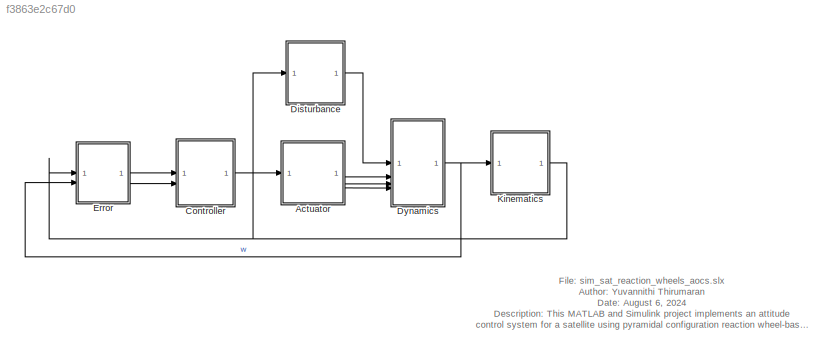
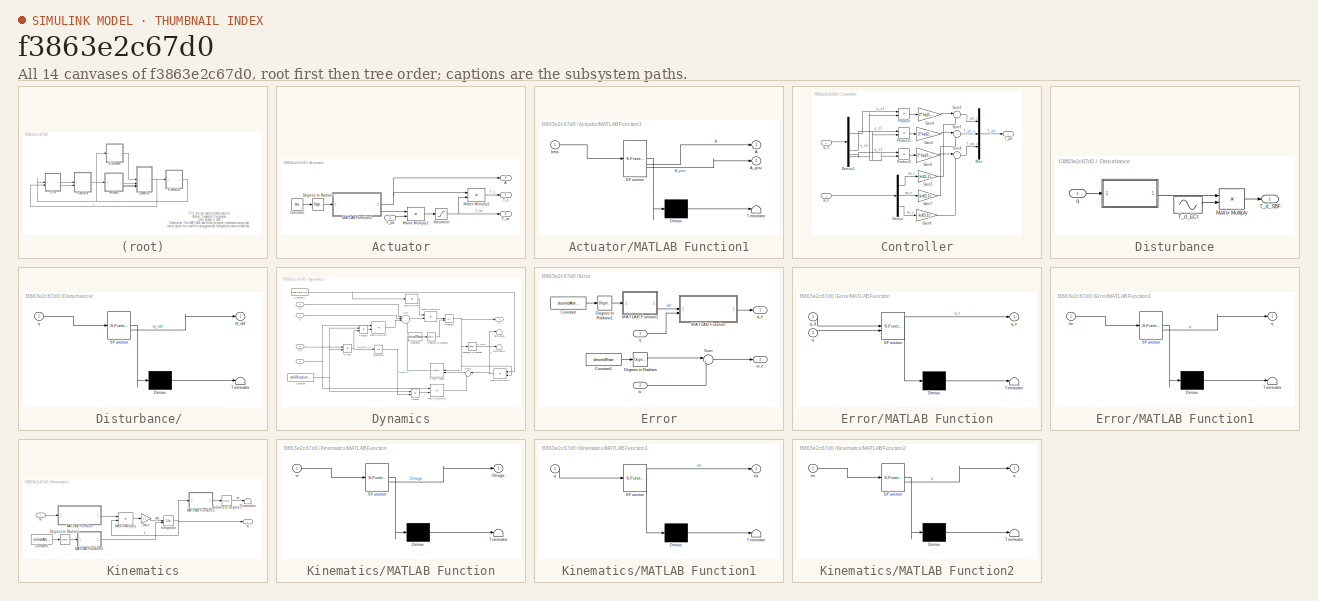
[diagram: thumbnail index - all 14 canvases of the model, root first then tree order]
MODEL slx_f3863e2c67d0
KIND model
CONFIG AbsTol = auto
CONFIG EnableMultiTasking = off
CONFIG FixedStep = auto
CONFIG MaxStep = auto
CONFIG MinStep = auto
CONFIG RelTol = 1e-3
CONFIG SampleTimeConstraint = Unconstrained
CONFIG SolverName = VariableStepAuto
CONFIG StartTime = 0.0
CONFIG StopTime = 120
BLOCK [SubSystem] Actuator
BLOCK [Outport] Actuator/A
  Port = 3
BLOCK [Constant] Actuator/Constant
  Value = beta
BLOCK [Reference] Actuator/Degrees to Radians  REF=simulink_extras/Transformations/Degrees to
Radians
  SourceBlock = simulink_extras/Transformations/Degrees to\nRadians
  SourceType = DegreesToRadians
BLOCK [SubSystem] Actuator/MATLAB Function1
  ErrorFcn = Stateflow.Translate.translate
  PermitHierarchicalResolution = ExplicitOnly
  SFBlockType = MATLAB Function
  TreatAsAtomicUnit = on
BLOCK [Demux] Actuator/MATLAB Function1/ Demux 
  Outputs = 1
BLOCK [S-Function] Actuator/MATLAB Function1/ SFunction 
  EnableBusSupport = on
  FunctionName = sf_sfun
  PortCounts = [1 3]
  SFcnIsStateOwnerBlock = off
  SFunctionDeploymentMode = off
  Tag = Stateflow S-Function 3
BLOCK [Terminator] Actuator/MATLAB Function1/ Terminator 
BLOCK [Outport] Actuator/MATLAB Function1/A
BLOCK [Outport] Actuator/MATLAB Function1/A_pinv
  Port = 2
BLOCK [Inport] Actuator/MATLAB Function1/beta
BLOCK [Product] Actuator/Matrix Multiply1
  Multiplication = Matrix(*)
BLOCK [Product] Actuator/Matrix Multiply2
  Multiplication = Matrix(*)
BLOCK [Saturate] Actuator/Saturation
  LowerLimit = -maxTorqueReactionWheel
  UpperLimit = maxTorqueReactionWheel
BLOCK [Outport] Actuator/T_c
BLOCK [Inport] Actuator/T_pd
BLOCK [Outport] Actuator/T_rw
  Port = 2
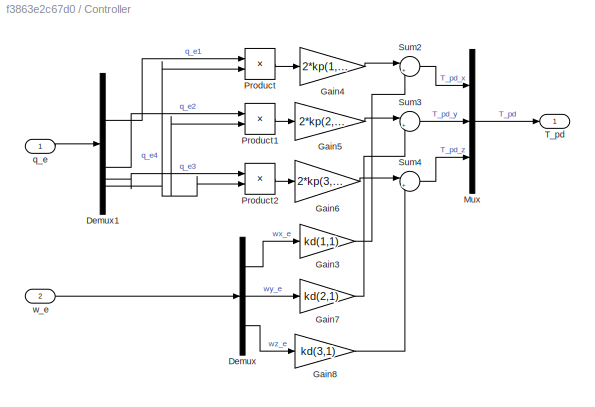
BLOCK [SubSystem] Controller
BLOCK [Demux] Controller/Demux
  Outputs = 3
BLOCK [Demux] Controller/Demux1
BLOCK [Gain] Controller/Gain3
  Gain = kd(1,1)
BLOCK [Gain] Controller/Gain4
  Gain = 2*kp(1,1)
BLOCK [Gain] Controller/Gain5
  Gain = 2*kp(2,1)
BLOCK [Gain] Controller/Gain6
  Gain = 2*kp(3,1)
BLOCK [Gain] Controller/Gain7
  Gain = kd(2,1)
BLOCK [Gain] Controller/Gain8
  Gain = kd(3,1)
BLOCK [Mux] Controller/Mux
  DisplayOption = bar
  Inputs = 3
BLOCK [Product] Controller/Product
BLOCK [Product] Controller/Product1
BLOCK [Product] Controller/Product2
BLOCK [Sum] Controller/Sum2
  Inputs = |++
BLOCK [Sum] Controller/Sum3
  Inputs = |++
BLOCK [Sum] Controller/Sum4
  Inputs = |++
BLOCK [Outport] Controller/T_pd
BLOCK [Inport] Controller/q_e
BLOCK [Inport] Controller/w_e
  Port = 2
BLOCK [SubSystem] Disturbance
BLOCK [SubSystem] Disturbance/ 
  ErrorFcn = Stateflow.Translate.translate
  PermitHierarchicalResolution = ExplicitOnly
  SFBlockType = MATLAB Function
  TreatAsAtomicUnit = on
BLOCK [Demux] Disturbance/ / Demux 
  Outputs = 1
BLOCK [S-Function] Disturbance/ / SFunction 
  EnableBusSupport = on
  FunctionName = sf_sfun
  PortCounts = [1 2]
  SFcnIsStateOwnerBlock = off
  SFunctionDeploymentMode = off
  Tag = Stateflow S-Function 5
BLOCK [Terminator] Disturbance/ / Terminator 
BLOCK [Inport] Disturbance/ /q
BLOCK [Outport] Disturbance/ /td_sbf
BLOCK [Product] Disturbance/Matrix Multiply
  Multiplication = Matrix(*)
BLOCK [Sin] Disturbance/T_d_ECI
  Amplitude = disturbanceTorque
  SampleTime = 0
BLOCK [Outport] Disturbance/T_d_SBF
BLOCK [Inport] Disturbance/q
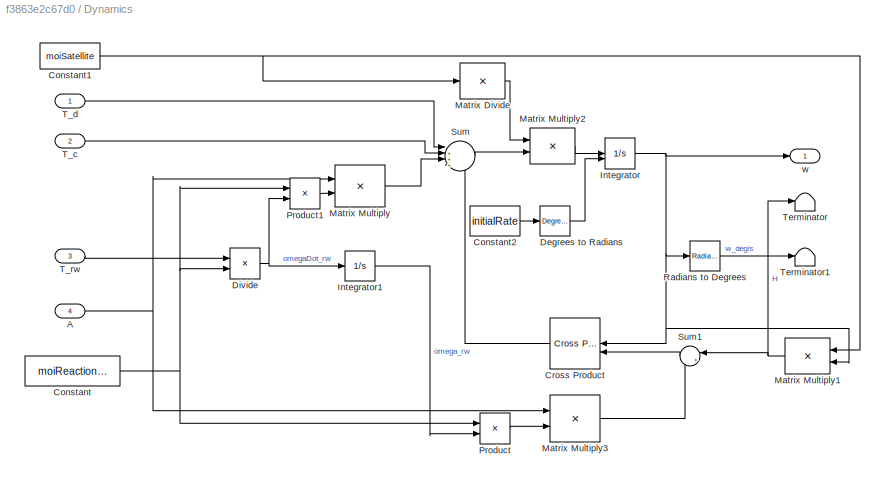
BLOCK [SubSystem] Dynamics
BLOCK [Inport] Dynamics/A
  Port = 4
BLOCK [Constant] Dynamics/Constant
  Value = moiReactionWheel
BLOCK [Constant] Dynamics/Constant1
  Value = moiSatellite
BLOCK [Constant] Dynamics/Constant2
  Value = initialRate
BLOCK [Reference] Dynamics/Cross Product  REF=matrix_library/Cross Product
  LibrarySourceBlock = simulink/Matrix\nOperations/Cross Product
  NameLocation = top
  SourceBlock = matrix_library/Cross Product
  SourceType = CrossProduct
BLOCK [Reference] Dynamics/Degrees to Radians  REF=simulink_extras/Transformations/Degrees to
Radians
  SourceBlock = simulink_extras/Transformations/Degrees to\nRadians
  SourceType = DegreesToRadians
BLOCK [Product] Dynamics/Divide
  Inputs = */
BLOCK [Integrator] Dynamics/Integrator
  InitialCondition = initialRate
  InitialConditionSource = external
BLOCK [Integrator] Dynamics/Integrator1
  InitialCondition = zeros(4,1)
BLOCK [Product] Dynamics/Matrix Divide
  Inputs = /
  Multiplication = Matrix(*)
BLOCK [Product] Dynamics/Matrix Multiply
  Multiplication = Matrix(*)
BLOCK [Product] Dynamics/Matrix Multiply1
  Multiplication = Matrix(*)
  NameLocation = top
BLOCK [Product] Dynamics/Matrix Multiply2
  Multiplication = Matrix(*)
BLOCK [Product] Dynamics/Matrix Multiply3
  Multiplication = Matrix(*)
BLOCK [Product] Dynamics/Product
BLOCK [Product] Dynamics/Product1
BLOCK [Reference] Dynamics/Radians to Degrees  REF=simulink_extras/Transformations/Radians
to Degrees
  SourceBlock = simulink_extras/Transformations/Radians\nto Degrees
  SourceType = RadiansToDegrees
BLOCK [Sum] Dynamics/Sum
  Inputs = |+++-
BLOCK [Sum] Dynamics/Sum1
  Inputs = |++
  NameLocation = top
BLOCK [Inport] Dynamics/T_c
  Port = 2
BLOCK [Inport] Dynamics/T_d
BLOCK [Inport] Dynamics/T_rw
  Port = 3
BLOCK [Terminator] Dynamics/Terminator
BLOCK [Terminator] Dynamics/Terminator1
BLOCK [Outport] Dynamics/w
BLOCK [SubSystem] Error
BLOCK [Constant] Error/Constant
  Value = desiredAttitude
BLOCK [Constant] Error/Constant1
  Value = desiredRate
BLOCK [Reference] Error/Degrees to Radians  REF=simulink_extras/Transformations/Degrees to
Radians
  SourceBlock = simulink_extras/Transformations/Degrees to\nRadians
  SourceType = DegreesToRadians
BLOCK [Reference] Error/Degrees to Radians1  REF=simulink_extras/Transformations/Degrees to
Radians
  SourceBlock = simulink_extras/Transformations/Degrees to\nRadians
  SourceType = DegreesToRadians
BLOCK [SubSystem] Error/MATLAB Function
  ErrorFcn = Stateflow.Translate.translate
  PermitHierarchicalResolution = ExplicitOnly
  SFBlockType = MATLAB Function
  TreatAsAtomicUnit = on
BLOCK [Demux] Error/MATLAB Function/ Demux 
  Outputs = 1
BLOCK [S-Function] Error/MATLAB Function/ SFunction 
  EnableBusSupport = on
  FunctionName = sf_sfun
  PortCounts = [2 2]
  SFcnIsStateOwnerBlock = off
  SFunctionDeploymentMode = off
  Tag = Stateflow S-Function 6
BLOCK [Terminator] Error/MATLAB Function/ Terminator 
BLOCK [Inport] Error/MATLAB Function/q
  Port = 2
BLOCK [Inport] Error/MATLAB Function/q_d
BLOCK [Outport] Error/MATLAB Function/q_e
BLOCK [SubSystem] Error/MATLAB Function1
  ErrorFcn = Stateflow.Translate.translate
  PermitHierarchicalResolution = ExplicitOnly
  SFBlockType = MATLAB Function
  TreatAsAtomicUnit = on
BLOCK [Demux] Error/MATLAB Function1/ Demux 
  Outputs = 1
BLOCK [S-Function] Error/MATLAB Function1/ SFunction 
  EnableBusSupport = on
  FunctionName = sf_sfun
  PortCounts = [1 2]
  SFcnIsStateOwnerBlock = off
  SFunctionDeploymentMode = off
  Tag = Stateflow S-Function 4
BLOCK [Terminator] Error/MATLAB Function1/ Terminator 
BLOCK [Inport] Error/MATLAB Function1/ea
BLOCK [Outport] Error/MATLAB Function1/q
BLOCK [Sum] Error/Sum
  Inputs = |+-
BLOCK [Inport] Error/q
BLOCK [Outport] Error/q_e
BLOCK [Inport] Error/w
  Port = 2
BLOCK [Outport] Error/w_e
  Port = 2
BLOCK [SubSystem] Kinematics
BLOCK [Constant] Kinematics/Constant
  Value = initialAttitude
BLOCK [Reference] Kinematics/Degrees to Radians  REF=simulink_extras/Transformations/Degrees to
Radians
  SourceBlock = simulink_extras/Transformations/Degrees to\nRadians
  SourceType = DegreesToRadians
BLOCK [Gain] Kinematics/Gain
  Gain = 0.5
BLOCK [Integrator] Kinematics/Integrator
  InitialCondition = [1; 0; 0; 0]
  InitialConditionSource = external
BLOCK [SubSystem] Kinematics/MATLAB Function
  ErrorFcn = Stateflow.Translate.translate
  PermitHierarchicalResolution = ExplicitOnly
  SFBlockType = MATLAB Function
  TreatAsAtomicUnit = on
BLOCK [Demux] Kinematics/MATLAB Function/ Demux 
  Outputs = 1
BLOCK [S-Function] Kinematics/MATLAB Function/ SFunction 
  EnableBusSupport = on
  FunctionName = sf_sfun
  PortCounts = [1 2]
  SFcnIsStateOwnerBlock = off
  SFunctionDeploymentMode = off
  Tag = Stateflow S-Function 2
BLOCK [Terminator] Kinematics/MATLAB Function/ Terminator 
BLOCK [Outport] Kinematics/MATLAB Function/Omega
BLOCK [Inport] Kinematics/MATLAB Function/w
BLOCK [SubSystem] Kinematics/MATLAB Function1
  ErrorFcn = Stateflow.Translate.translate
  PermitHierarchicalResolution = ExplicitOnly
  SFBlockType = MATLAB Function
  TreatAsAtomicUnit = on
BLOCK [Demux] Kinematics/MATLAB Function1/ Demux 
  Outputs = 1
BLOCK [S-Function] Kinematics/MATLAB Function1/ SFunction 
  EnableBusSupport = on
  FunctionName = sf_sfun
  PortCounts = [1 2]
  SFcnIsStateOwnerBlock = off
  SFunctionDeploymentMode = off
  Tag = Stateflow S-Function 7
BLOCK [Terminator] Kinematics/MATLAB Function1/ Terminator 
BLOCK [Outport] Kinematics/MATLAB Function1/ea
BLOCK [Inport] Kinematics/MATLAB Function1/q
BLOCK [SubSystem] Kinematics/MATLAB Function2
  ErrorFcn = Stateflow.Translate.translate
  PermitHierarchicalResolution = ExplicitOnly
  SFBlockType = MATLAB Function
  TreatAsAtomicUnit = on
BLOCK [Demux] Kinematics/MATLAB Function2/ Demux 
  Outputs = 1
BLOCK [S-Function] Kinematics/MATLAB Function2/ SFunction 
  EnableBusSupport = on
  FunctionName = sf_sfun
  PortCounts = [1 2]
  SFcnIsStateOwnerBlock = off
  SFunctionDeploymentMode = off
  Tag = Stateflow S-Function 1
BLOCK [Terminator] Kinematics/MATLAB Function2/ Terminator 
BLOCK [Inport] Kinematics/MATLAB Function2/ea
BLOCK [Outport] Kinematics/MATLAB Function2/q
BLOCK [Product] Kinematics/Matrix Multiply
  Multiplication = Matrix(*)
BLOCK [Reference] Kinematics/Radians to Degrees  REF=simulink_extras/Transformations/Radians
to Degrees
  SourceBlock = simulink_extras/Transformations/Radians\nto Degrees
  SourceType = RadiansToDegrees
BLOCK [Terminator] Kinematics/Terminator
BLOCK [Outport] Kinematics/q
BLOCK [Inport] Kinematics/w
ANNOTATION (root): File: sim_sat_reaction_wheels_aocs.slx Author: Yuvannithi Thirumaran Date: August 6, 2024 Description: This MATLAB and Simulink project implements an attitude control system for a satellite using pyramidal configuration reaction wheel-based control. Simulation results include satellite attitude (Euler angles and quaternions), angular rate, momentum, and torque (Satellite and reaction wheels).
LINE Actuator/Constant:1 -> Actuator/Degrees to Radians:1
LINE Actuator/Degrees to Radians:1 -> Actuator/MATLAB Function1:1
NET Actuator/MATLAB Function1:1 -> Actuator/A:1, Actuator/Matrix Multiply2:1
LINE Actuator/MATLAB Function1:2 -> Actuator/Matrix Multiply1:1
LINE Actuator/Matrix Multiply1:1 -> Actuator/Saturation:1
LINE Actuator/Matrix Multiply2:1 -> Actuator/T_c:1
NET Actuator/Saturation:1 -> Actuator/Matrix Multiply2:2, Actuator/T_rw:1
LINE Actuator/T_pd:1 -> Actuator/Matrix Multiply1:2
LINE Actuator:1 -> Dynamics:2
LINE Actuator:2 -> Dynamics:3
LINE Actuator:3 -> Dynamics:4
LINE Controller/Demux1:1 -> Controller/Product:1
LINE Controller/Demux1:2 -> Controller/Product1:1
LINE Controller/Demux1:3 -> Controller/Product2:1
NET Controller/Demux1:4 -> Controller/Product1:2, Controller/Product2:2, Controller/Product:2
LINE Controller/Demux:1 -> Controller/Gain3:1
LINE Controller/Demux:2 -> Controller/Gain7:1
LINE Controller/Demux:3 -> Controller/Gain8:1
LINE Controller/Gain3:1 -> Controller/Sum2:2
LINE Controller/Gain4:1 -> Controller/Sum2:1
LINE Controller/Gain5:1 -> Controller/Sum3:1
LINE Controller/Gain6:1 -> Controller/Sum4:1
LINE Controller/Gain7:1 -> Controller/Sum3:2
LINE Controller/Gain8:1 -> Controller/Sum4:2
LINE Controller/Mux:1 -> Controller/T_pd:1
LINE Controller/Product1:1 -> Controller/Gain5:1
LINE Controller/Product2:1 -> Controller/Gain6:1
LINE Controller/Product:1 -> Controller/Gain4:1
LINE Controller/Sum2:1 -> Controller/Mux:1
LINE Controller/Sum3:1 -> Controller/Mux:2
LINE Controller/Sum4:1 -> Controller/Mux:3
LINE Controller/q_e:1 -> Controller/Demux1:1
LINE Controller/w_e:1 -> Controller/Demux:1
LINE Controller:1 -> Actuator:1
LINE Disturbance/ :1 -> Disturbance/Matrix Multiply:1
LINE Disturbance/Matrix Multiply:1 -> Disturbance/T_d_SBF:1
LINE Disturbance/T_d_ECI:1 -> Disturbance/Matrix Multiply:2
LINE Disturbance/q:1 -> Disturbance/ :1
LINE Disturbance:1 -> Dynamics:1
NET Dynamics/A:1 -> Dynamics/Matrix Multiply3:1, Dynamics/Matrix Multiply:1
NET Dynamics/Constant1:1 -> Dynamics/Matrix Divide:1, Dynamics/Matrix Multiply1:1
LINE Dynamics/Constant2:1 -> Dynamics/Degrees to Radians:1
NET Dynamics/Constant:1 -> Dynamics/Divide:2, Dynamics/Product1:1, Dynamics/Product:1
LINE Dynamics/Cross Product:1 -> Dynamics/Sum:4
LINE Dynamics/Degrees to Radians:1 -> Dynamics/Integrator:2
NET Dynamics/Divide:1 -> Dynamics/Integrator1:1, Dynamics/Product1:2
LINE Dynamics/Integrator1:1 -> Dynamics/Product:2
NET Dynamics/Integrator:1 -> Dynamics/Cross Product:1, Dynamics/Matrix Multiply1:2, Dynamics/Radians to Degrees:1, Dynamics/w:1
LINE Dynamics/Matrix Divide:1 -> Dynamics/Matrix Multiply2:1
NET Dynamics/Matrix Multiply1:1 -> Dynamics/Sum1:1, Dynamics/Terminator:1
LINE Dynamics/Matrix Multiply2:1 -> Dynamics/Integrator:1
LINE Dynamics/Matrix Multiply3:1 -> Dynamics/Sum1:2
LINE Dynamics/Matrix Multiply:1 -> Dynamics/Sum:3
LINE Dynamics/Product1:1 -> Dynamics/Matrix Multiply:2
LINE Dynamics/Product:1 -> Dynamics/Matrix Multiply3:2
LINE Dynamics/Radians to Degrees:1 -> Dynamics/Terminator1:1
LINE Dynamics/Sum1:1 -> Dynamics/Cross Product:2
LINE Dynamics/Sum:1 -> Dynamics/Matrix Multiply2:2
LINE Dynamics/T_c:1 -> Dynamics/Sum:2
LINE Dynamics/T_d:1 -> Dynamics/Sum:1
LINE Dynamics/T_rw:1 -> Dynamics/Divide:1
NET Dynamics:1 -> Error:2, Kinematics:1
LINE Error/Constant1:1 -> Error/Degrees to Radians:1
LINE Error/Constant:1 -> Error/Degrees to Radians1:1
LINE Error/Degrees to Radians1:1 -> Error/MATLAB Function1:1
LINE Error/Degrees to Radians:1 -> Error/Sum:1
LINE Error/MATLAB Function1:1 -> Error/MATLAB Function:1
LINE Error/MATLAB Function:1 -> Error/q_e:1
LINE Error/Sum:1 -> Error/w_e:1
LINE Error/q:1 -> Error/MATLAB Function:2
LINE Error/w:1 -> Error/Sum:2
LINE Error:1 -> Controller:1
LINE Error:2 -> Controller:2
LINE Kinematics/Constant:1 -> Kinematics/Degrees to Radians:1
LINE Kinematics/Degrees to Radians:1 -> Kinematics/MATLAB Function2:1
LINE Kinematics/Gain:1 -> Kinematics/Integrator:1
NET Kinematics/Integrator:1 -> Kinematics/MATLAB Function1:1, Kinematics/Matrix Multiply:2, Kinematics/q:1
LINE Kinematics/MATLAB Function1:1 -> Kinematics/Radians to Degrees:1
LINE Kinematics/MATLAB Function2:1 -> Kinematics/Integrator:2
LINE Kinematics/MATLAB Function:1 -> Kinematics/Matrix Multiply:1
LINE Kinematics/Matrix Multiply:1 -> Kinematics/Gain:1
LINE Kinematics/Radians to Degrees:1 -> Kinematics/Terminator:1
LINE Kinematics/w:1 -> Kinematics/MATLAB Function:1
NET Kinematics:1 -> Disturbance:1, Error:1
note: NET lines group one-source signal fan-out (src -> all destinations, sorted); 1:1 wires keep LINE
CHART Kinematics/MATLAB Function states=1 transitions=1
  STATE_LABEL 'eML_blk_kernel()'
  STATE_LABEL 'SCRIPT:\nfunction Omega = fcn(w)\n\nwx = w(1,1);\nwy = w(2,1);\nwz = w(3,1);\n\nOmega = [0,  wz, -wy,  wx;\n       -wz,   0,  wx, wy;\n        wy, -wx,   0,  wz;\n       -wx, -wy, -wz,  0];'
CHART Actuator/MATLAB Function1 states=1 transitions=1
  STATE_LABEL 'eML_blk_kernel()'
  STATE_LABEL 'SCRIPT:\nfunction [A, A_pinv] = configMatrix(beta)\n\nA = [cos(beta) 0 -cos(beta) 0;\n     0 cos(beta) 0 -cos(beta);\n     sin(beta) sin(beta) sin(beta) sin(beta)];\n\nA_pinv = pinv(A);'
CHART Error/MATLAB Function1 states=1 transitions=1
  STATE_LABEL 'eML_blk_kernel()'
  STATE_LABEL 'SCRIPT:\nfunction q = fcn(ea)\n\nphi = ea(1,1);\ntheta = ea(2,1);\npsi = ea(3,1);\n\nq1 =  sin(psi/2)*sin(theta/2)*sin(phi/2) + cos(psi/2)*cos(theta/2)*cos(phi/2);\nq2 = -sin(psi/2)*sin(theta/2)*cos(phi/2) + cos(psi/2)*cos(theta/2)*sin(phi/2);\nq3 =  sin(psi/2)*cos(theta/2)*sin(phi/2) + cos(psi/2)*sin(theta/2)*cos(phi/2);\nq4 =  sin(psi/2)*cos(theta/2)*cos(phi/2) - cos(psi/2)*sin(theta/2)*sin(phi/2);\n\nq = [...<+16ch>'
CHART Disturbance/  states=1 transitions=1
  STATE_LABEL 'eML_blk_kernel()'
  STATE_LABEL 'SCRIPT:\nfunction td_sbf = eci2sbf(q)\n\nq1 = q(1,1);\nq2 = q(2,1);\nq3 = q(3,1);\nq4 = q(4,1);\n\ntd_sbf = [1 - 2*(q3^2 + q4^2),   2*(q2*q3 - q1*q4),   2*(q2*q4 + q1*q3);\n            2*(q2*q3 + q1*q4), 1 - 2*(q2^2 + q4^2),   2*(q3*q4 - q1*q2);\n            2*(q2*q4 - q1*q3),   2*(q3*q4 + q1*q2), 1 - 2*(q2^2 + q3^2)];'
CHART Error/MATLAB Function states=1 transitions=1
  STATE_LABEL 'eML_blk_kernel()'
  STATE_LABEL 'SCRIPT:\nfunction q_e = quaternionError(q_d, q)\n\nq_d1 = q_d(1,1);\nq_d2 = q_d(2,1);\nq_d3 = q_d(3,1);\nq_d4 = q_d(4,1);\n\nq_e = 0.5*[q_d4,  q_d3, -q_d2, q_d1;\n          -q_d3,  q_d4,  q_d1, q_d2;\n           q_d2, -q_d1,  q_d4, q_d3;\n          -q_d1, -q_d2, -q_d3, q_d4]*[-q(1:3,1); q(4,1)];'
CHART Kinematics/MATLAB Function1 states=1 transitions=1
  STATE_LABEL 'eML_blk_kernel()'
  STATE_LABEL 'SCRIPT:\nfunction ea = fcn(q)\n\nq1 = q(1,1);\nq2 = q(2,1);\nq3 = q(3,1);\nq4 = q(4,1);\n\nphi = atan2(2*(q1*q2 + q3*q4), q1^2 - q2^2 - q3^2 + q4^2);\ntheta = -asin(2*(q2*q4 - q1*q3));\npsi = atan2(2*(q1*q4 + q2*q3), q1^2 + q2^2 - q3^2 - q4^2);\n\nea = [phi; theta; psi];'
CHART Kinematics/MATLAB Function2 states=1 transitions=1
  STATE_LABEL 'eML_blk_kernel()'
  STATE_LABEL 'SCRIPT:\nfunction q = fcn(ea)\n\nphi = ea(1,1);\ntheta = ea(2,1);\npsi = ea(3,1);\n\nq1 =  sin(psi/2)*sin(theta/2)*sin(phi/2) + cos(psi/2)*cos(theta/2)*cos(phi/2);\nq2 = -sin(psi/2)*sin(theta/2)*cos(phi/2) + cos(psi/2)*cos(theta/2)*sin(phi/2);\nq3 =  sin(psi/2)*cos(theta/2)*sin(phi/2) + cos(psi/2)*sin(theta/2)*cos(phi/2);\nq4 =  sin(psi/2)*cos(theta/2)*cos(phi/2) - cos(psi/2)*sin(theta/2)*sin(phi/2);\n\nq = [...<+16ch>'
CHART  states=0 transitions=0
CHART  states=0 transitions=0
CHART  states=0 transitions=0
CHART  states=0 transitions=0
CHART  states=0 transitions=0
CHART  states=0 transitions=0
CHART  states=0 transitions=0
